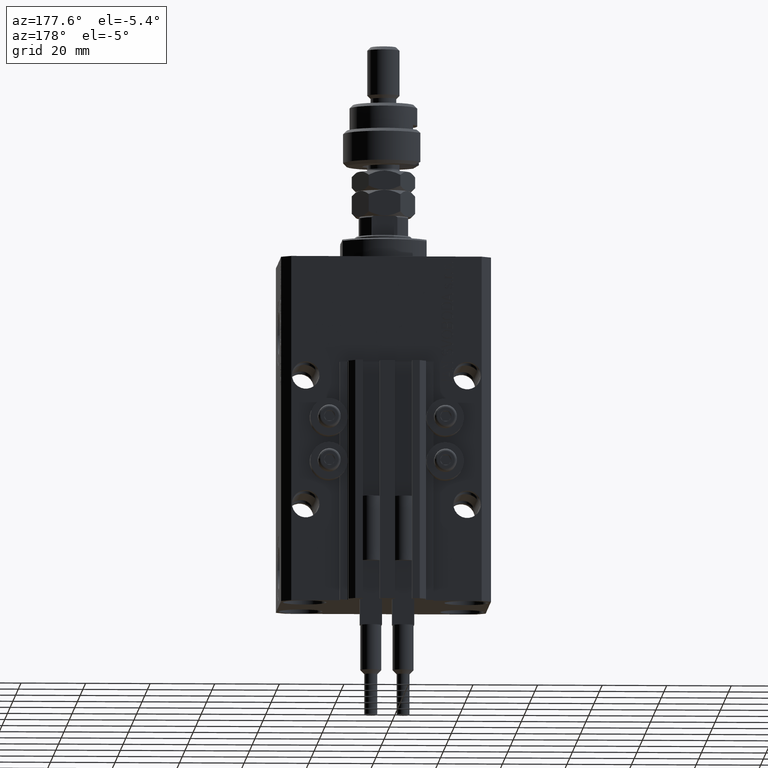
[diagram: clean part render]
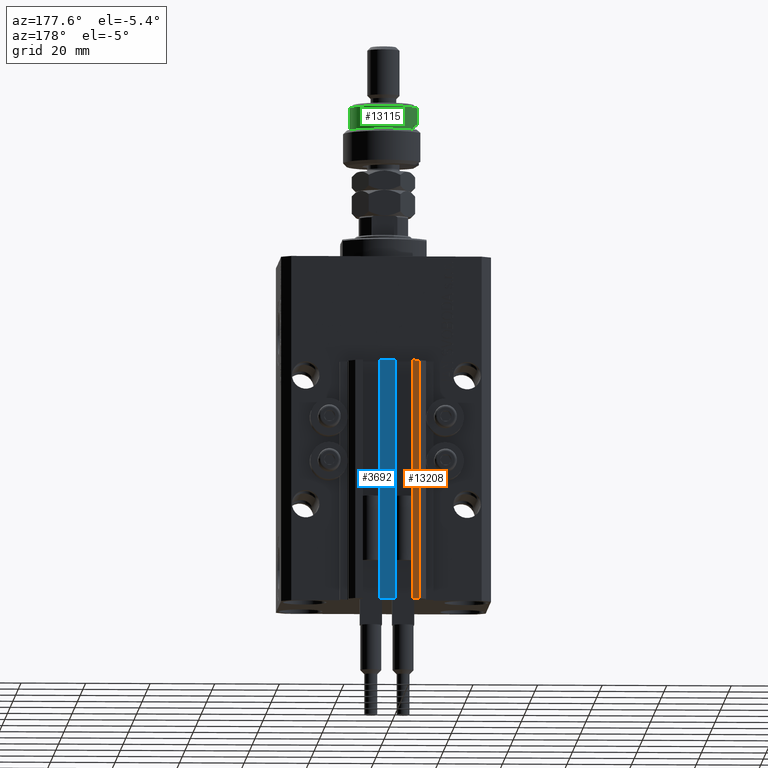
[diagram: same view with three faces highlighted in distinct colors, each labeled with its STEP entity id]
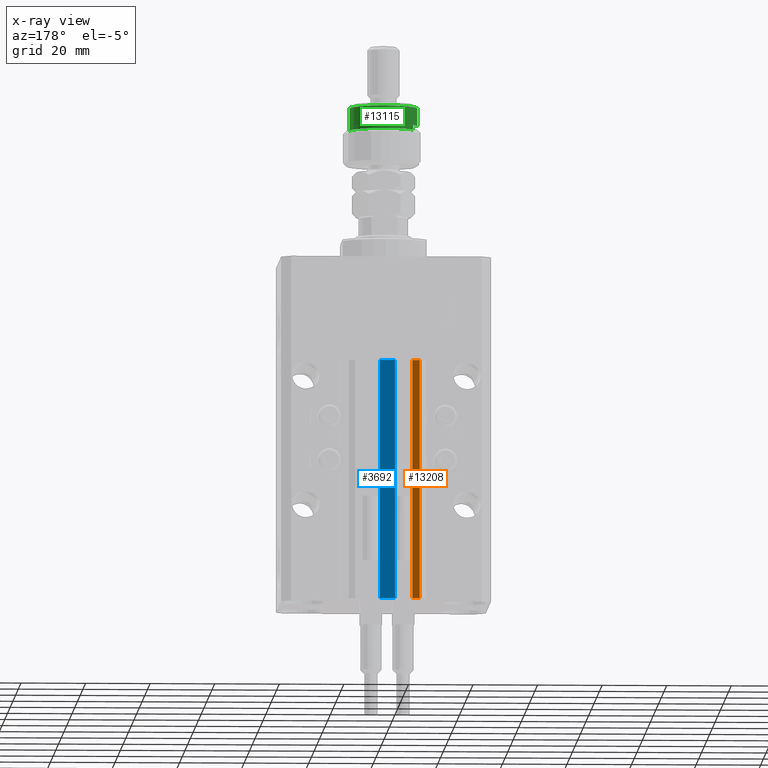
[diagram: x-ray of the same camera — body ghosted, the three highlighted faces saturated]
A machine part, auxiliary view with three faces highlighted in distinct colors.
The next image is the same camera in x-ray (body ghosted, the three faces saturated) — at least one of them is partly hidden behind the body in this view.
Their STEP definitions:

[orange] entity #13208 — the highlighted planar face has unit normal (0, 1, 0).
#1481 = CARTESIAN_POINT ( 'NONE',  ( -7.650000000000000355, 30.49999999999948486, -107.0000000000000000 ) ) ;
#3503 = EDGE_CURVE ( 'NONE', #47837, #24632, #44432, .T. ) ;
#4531 = DIRECTION ( 'NONE',  ( 1.476360405086644852E-15, 1.000000000000000000, -0.000000000000000000 ) ) ;
#5020 = VECTOR ( 'NONE', #5524, 1000.000000000000000 ) ;
#5524 = DIRECTION ( 'NONE',  ( -1.000000000000000000, 1.476360405086644852E-15, 0.000000000000000000 ) ) ;
#5970 = CARTESIAN_POINT ( 'NONE',  ( -10.00000000000000000, 30.49999999999948841, -107.0000000000000000 ) ) ;
#6080 = VECTOR ( 'NONE', #26177, 1000.000000000000000 ) ;
#7042 = AXIS2_PLACEMENT_3D ( 'NONE', #25258, #4531, #41133 ) ;
#8194 = VECTOR ( 'NONE', #41306, 1000.000000000000000 ) ;
#13041 = CARTESIAN_POINT ( 'NONE',  ( -10.00000000000000000, 30.49999999999948841, -33.00000000000000000 ) ) ;
#13208 = ADVANCED_FACE ( 'NONE', ( #24756 ), #48412, .T. ) ;
#15008 = CARTESIAN_POINT ( 'NONE',  ( -7.650000000000000355, 30.49999999999948486, -33.00000000000000000 ) ) ;
#15890 = ORIENTED_EDGE ( 'NONE', *, *, #3503, .T. ) ;
#20920 = VERTEX_POINT ( 'NONE', #43447 ) ;
#24632 = VERTEX_POINT ( 'NONE', #13041 ) ;
#24756 = FACE_OUTER_BOUND ( 'NONE', #26067, .T. ) ;
#24951 = ORIENTED_EDGE ( 'NONE', *, *, #25541, .F. ) ;
#25258 = CARTESIAN_POINT ( 'NONE',  ( -7.650000000000000355, 30.49999999999948486, -107.0000000000000000 ) ) ;
#25541 = EDGE_CURVE ( 'NONE', #20920, #38322, #44884, .T. ) ;
#26067 = EDGE_LOOP ( 'NONE', ( #44628, #24951, #42464, #15890 ) ) ;
#26177 = DIRECTION ( 'NONE',  ( -1.000000000000000000, 1.476360405086644852E-15, 0.000000000000000000 ) ) ;
#27034 = EDGE_CURVE ( 'NONE', #20920, #47837, #32565, .T. ) ;
#32565 = LINE ( 'NONE', #40624, #5020 ) ;
#33437 = DIRECTION ( 'NONE',  ( 0.000000000000000000, 0.000000000000000000, 1.000000000000000000 ) ) ;
#33535 = EDGE_CURVE ( 'NONE', #38322, #24632, #42048, .T. ) ;
#37316 = VECTOR ( 'NONE', #33437, 1000.000000000000000 ) ;
#38322 = VERTEX_POINT ( 'NONE', #40603 ) ;
#40603 = CARTESIAN_POINT ( 'NONE',  ( -7.650000000000000355, 30.49999999999948486, -33.00000000000000000 ) ) ;
#40624 = CARTESIAN_POINT ( 'NONE',  ( -7.650000000000000355, 30.49999999999948486, -107.0000000000000000 ) ) ;
#41133 = DIRECTION ( 'NONE',  ( -1.000000000000000000, 1.476360405086644852E-15, 0.000000000000000000 ) ) ;
#41306 = DIRECTION ( 'NONE',  ( 0.000000000000000000, 0.000000000000000000, 1.000000000000000000 ) ) ;
#42048 = LINE ( 'NONE', #15008, #6080 ) ;
#42464 = ORIENTED_EDGE ( 'NONE', *, *, #27034, .T. ) ;
#43447 = CARTESIAN_POINT ( 'NONE',  ( -7.650000000000000355, 30.49999999999948486, -107.0000000000000000 ) ) ;
#44432 = LINE ( 'NONE', #5970, #8194 ) ;
#44628 = ORIENTED_EDGE ( 'NONE', *, *, #33535, .F. ) ;
#44884 = LINE ( 'NONE', #1481, #37316 ) ;
#46811 = CARTESIAN_POINT ( 'NONE',  ( -10.00000000000000000, 30.49999999999948841, -107.0000000000000000 ) ) ;
#47837 = VERTEX_POINT ( 'NONE', #46811 ) ;
#48412 = PLANE ( 'NONE',  #7042 ) ;

[blue] entity #3692 — the highlighted planar face has unit normal (0, -1, 0).
#3692 = ADVANCED_FACE ( 'NONE', ( #19442 ), #43357, .F. ) ;
#3793 = LINE ( 'NONE', #50817, #32796 ) ;
#3906 = VERTEX_POINT ( 'NONE', #27678 ) ;
#4127 = DIRECTION ( 'NONE',  ( 0.000000000000000000, -0.000000000000000000, -1.000000000000000000 ) ) ;
#6339 = VECTOR ( 'NONE', #27313, 1000.000000000000000 ) ;
#7090 = VECTOR ( 'NONE', #45529, 1000.000000000000000 ) ;
#7745 = CARTESIAN_POINT ( 'NONE',  ( -2.350000000000003197, 30.49999999999949907, -107.0000000000000000 ) ) ;
#10547 = DIRECTION ( 'NONE',  ( 1.000000000000000000, 0.000000000000000000, 0.000000000000000000 ) ) ;
#11464 = CARTESIAN_POINT ( 'NONE',  ( 2.349999999999999645, 30.49999999999949907, -107.0000000000000000 ) ) ;
#12680 = EDGE_CURVE ( 'NONE', #38161, #50013, #3793, .T. ) ;
#15745 = DIRECTION ( 'NONE',  ( 1.000000000000000000, 0.000000000000000000, 0.000000000000000000 ) ) ;
#16189 = EDGE_CURVE ( 'NONE', #50013, #3906, #47317, .T. ) ;
#17317 = AXIS2_PLACEMENT_3D ( 'NONE', #7745, #35559, #4127 ) ;
#19442 = FACE_OUTER_BOUND ( 'NONE', #42005, .T. ) ;
#21560 = ORIENTED_EDGE ( 'NONE', *, *, #27918, .T. ) ;
#21600 = CARTESIAN_POINT ( 'NONE',  ( -2.350000000000003197, 30.49999999999949907, -107.0000000000000000 ) ) ;
#21931 = ORIENTED_EDGE ( 'NONE', *, *, #12680, .F. ) ;
#23271 = VECTOR ( 'NONE', #15745, 1000.000000000000000 ) ;
#27242 = VERTEX_POINT ( 'NONE', #46792 ) ;
#27313 = DIRECTION ( 'NONE',  ( 0.000000000000000000, 0.000000000000000000, 1.000000000000000000 ) ) ;
#27678 = CARTESIAN_POINT ( 'NONE',  ( 2.349999999999999645, 30.49999999999949907, -33.00000000000000000 ) ) ;
#27918 = EDGE_CURVE ( 'NONE', #27242, #3906, #37676, .T. ) ;
#32796 = VECTOR ( 'NONE', #10547, 1000.000000000000000 ) ;
#35559 = DIRECTION ( 'NONE',  ( 0.000000000000000000, -1.000000000000000000, 0.000000000000000000 ) ) ;
#36093 = EDGE_CURVE ( 'NONE', #38161, #27242, #49407, .T. ) ;
#37676 = LINE ( 'NONE', #38890, #23271 ) ;
#38161 = VERTEX_POINT ( 'NONE', #21600 ) ;
#38890 = CARTESIAN_POINT ( 'NONE',  ( -2.350000000000003197, 30.49999999999949907, -33.00000000000000000 ) ) ;
#39895 = CARTESIAN_POINT ( 'NONE',  ( 2.349999999999999645, 30.49999999999949907, -107.0000000000000000 ) ) ;
#40004 = ORIENTED_EDGE ( 'NONE', *, *, #16189, .F. ) ;
#42005 = EDGE_LOOP ( 'NONE', ( #21560, #40004, #21931, #44165 ) ) ;
#43357 = PLANE ( 'NONE',  #17317 ) ;
#44165 = ORIENTED_EDGE ( 'NONE', *, *, #36093, .T. ) ;
#45529 = DIRECTION ( 'NONE',  ( 0.000000000000000000, 0.000000000000000000, 1.000000000000000000 ) ) ;
#46792 = CARTESIAN_POINT ( 'NONE',  ( -2.350000000000003197, 30.49999999999949907, -33.00000000000000000 ) ) ;
#47317 = LINE ( 'NONE', #11464, #6339 ) ;
#48906 = CARTESIAN_POINT ( 'NONE',  ( -2.350000000000003197, 30.49999999999949907, -107.0000000000000000 ) ) ;
#49407 = LINE ( 'NONE', #48906, #7090 ) ;
#50013 = VERTEX_POINT ( 'NONE', #39895 ) ;
#50817 = CARTESIAN_POINT ( 'NONE',  ( -2.350000000000003197, 30.49999999999949907, -107.0000000000000000 ) ) ;

[green] entity #13115 — the highlighted cylindrical surface (edge-blend (fillet) strip) has radius 10.5 mm, axis along (-0, -0, -1).
#1862 = CARTESIAN_POINT ( 'NONE',  ( 0.000000000000000000, 0.000000000000000000, 12.50000000000000000 ) ) ;
#2450 = DIRECTION ( 'NONE',  ( -0.000000000000000000, -0.000000000000000000, -1.000000000000000000 ) ) ;
#2901 = AXIS2_PLACEMENT_3D ( 'NONE', #4010, #23475, #11535 ) ;
#4010 = CARTESIAN_POINT ( 'NONE',  ( 0.000000000000000000, 0.000000000000000000, 19.00000000000000000 ) ) ;
#4241 = CARTESIAN_POINT ( 'NONE',  ( -8.944271909999159220, 5.500000000000000000, 12.50000000000000000 ) ) ;
#5081 = ORIENTED_EDGE ( 'NONE', *, *, #16750, .T. ) ;
#5568 = AXIS2_PLACEMENT_3D ( 'NONE', #29233, #32376, #28977 ) ;
#6280 = VERTEX_POINT ( 'NONE', #43389 ) ;
#6379 = VECTOR ( 'NONE', #8047, 1000.000000000000000 ) ;
#6590 = LINE ( 'NONE', #41704, #46461 ) ;
#8047 = DIRECTION ( 'NONE',  ( -0.000000000000000000, -0.000000000000000000, -1.000000000000000000 ) ) ;
#8553 = VERTEX_POINT ( 'NONE', #43486 ) ;
#11535 = DIRECTION ( 'NONE',  ( -1.000000000000000000, 0.000000000000000000, 0.000000000000000000 ) ) ;
#13115 = ADVANCED_FACE ( 'NONE', ( #23992 ), #35970, .T. ) ;
#15175 = VERTEX_POINT ( 'NONE', #4241 ) ;
#15209 = VERTEX_POINT ( 'NONE', #20072 ) ;
#15491 = CIRCLE ( 'NONE', #5568, 10.50000000000000000 ) ;
#16264 = CARTESIAN_POINT ( 'NONE',  ( 0.000000000000000000, 0.000000000000000000, 17.99999999999999645 ) ) ;
#16750 = EDGE_CURVE ( 'NONE', #36933, #42460, #15491, .T. ) ;
#20072 = CARTESIAN_POINT ( 'NONE',  ( -10.50000000000000000, 0.000000000000000000, 17.99999999999999645 ) ) ;
#20841 = DIRECTION ( 'NONE',  ( 0.000000000000000000, 0.000000000000000000, -1.000000000000000000 ) ) ;
#20930 = DIRECTION ( 'NONE',  ( 0.000000000000000000, 0.000000000000000000, -1.000000000000000000 ) ) ;
#21496 = EDGE_LOOP ( 'NONE', ( #31207, #44374, #5081, #38582, #42498, #41165 ) ) ;
#23475 = DIRECTION ( 'NONE',  ( -0.000000000000000000, -0.000000000000000000, -1.000000000000000000 ) ) ;
#23690 = EDGE_CURVE ( 'NONE', #6280, #15175, #47988, .T. ) ;
#23992 = FACE_OUTER_BOUND ( 'NONE', #21496, .T. ) ;
#25227 = DIRECTION ( 'NONE',  ( -1.000000000000000000, 0.000000000000000000, 0.000000000000000000 ) ) ;
#25947 = EDGE_CURVE ( 'NONE', #8553, #36933, #6590, .T. ) ;
#26497 = LINE ( 'NONE', #34067, #27029 ) ;
#27029 = VECTOR ( 'NONE', #30152, 1000.000000000000000 ) ;
#27991 = EDGE_CURVE ( 'NONE', #15209, #8553, #46536, .T. ) ;
#28977 = DIRECTION ( 'NONE',  ( 1.000000000000000000, 0.000000000000000000, 0.000000000000000000 ) ) ;
#29233 = CARTESIAN_POINT ( 'NONE',  ( 0.000000000000000000, 0.000000000000000000, 11.00000000000000000 ) ) ;
#29920 = CARTESIAN_POINT ( 'NONE',  ( -8.944271909999159220, 5.500000000000000000, 11.00000000000000000 ) ) ;
#30152 = DIRECTION ( 'NONE',  ( 0.000000000000000000, 0.000000000000000000, 1.000000000000000000 ) ) ;
#31207 = ORIENTED_EDGE ( 'NONE', *, *, #27991, .T. ) ;
#32376 = DIRECTION ( 'NONE',  ( 0.000000000000000000, 0.000000000000000000, 1.000000000000000000 ) ) ;
#34067 = CARTESIAN_POINT ( 'NONE',  ( -8.944271909999159220, 5.500000000000000000, 19.00000000000000000 ) ) ;
#35343 = LINE ( 'NONE', #43649, #6379 ) ;
#35768 = DIRECTION ( 'NONE',  ( 1.000000000000000000, 0.000000000000000000, 0.000000000000000000 ) ) ;
#35970 = CYLINDRICAL_SURFACE ( 'NONE', #2901, 10.50000000000000000 ) ;
#36933 = VERTEX_POINT ( 'NONE', #44034 ) ;
#37244 = AXIS2_PLACEMENT_3D ( 'NONE', #1862, #20841, #25227 ) ;
#37409 = EDGE_CURVE ( 'NONE', #42460, #15175, #26497, .T. ) ;
#38582 = ORIENTED_EDGE ( 'NONE', *, *, #37409, .T. ) ;
#40659 = EDGE_CURVE ( 'NONE', #15209, #6280, #35343, .T. ) ;
#41165 = ORIENTED_EDGE ( 'NONE', *, *, #40659, .F. ) ;
#41704 = CARTESIAN_POINT ( 'NONE',  ( 10.50000000000000000, 1.285879139104720831E-15, 19.00000000000000000 ) ) ;
#42391 = AXIS2_PLACEMENT_3D ( 'NONE', #16264, #20930, #35768 ) ;
#42460 = VERTEX_POINT ( 'NONE', #29920 ) ;
#42498 = ORIENTED_EDGE ( 'NONE', *, *, #23690, .F. ) ;
#43389 = CARTESIAN_POINT ( 'NONE',  ( -10.50000000000000000, 0.000000000000000000, 12.50000000000000000 ) ) ;
#43486 = CARTESIAN_POINT ( 'NONE',  ( 10.50000000000000000, 1.285879139104720831E-15, 17.99999999999999645 ) ) ;
#43649 = CARTESIAN_POINT ( 'NONE',  ( -10.50000000000000000, 0.000000000000000000, 19.00000000000000000 ) ) ;
#44034 = CARTESIAN_POINT ( 'NONE',  ( 10.50000000000000000, 1.285879139104720831E-15, 11.00000000000000000 ) ) ;
#44374 = ORIENTED_EDGE ( 'NONE', *, *, #25947, .T. ) ;
#46461 = VECTOR ( 'NONE', #2450, 1000.000000000000000 ) ;
#46536 = CIRCLE ( 'NONE', #42391, 10.50000000000000000 ) ;
#47988 = CIRCLE ( 'NONE', #37244, 10.50000000000000000 ) ;